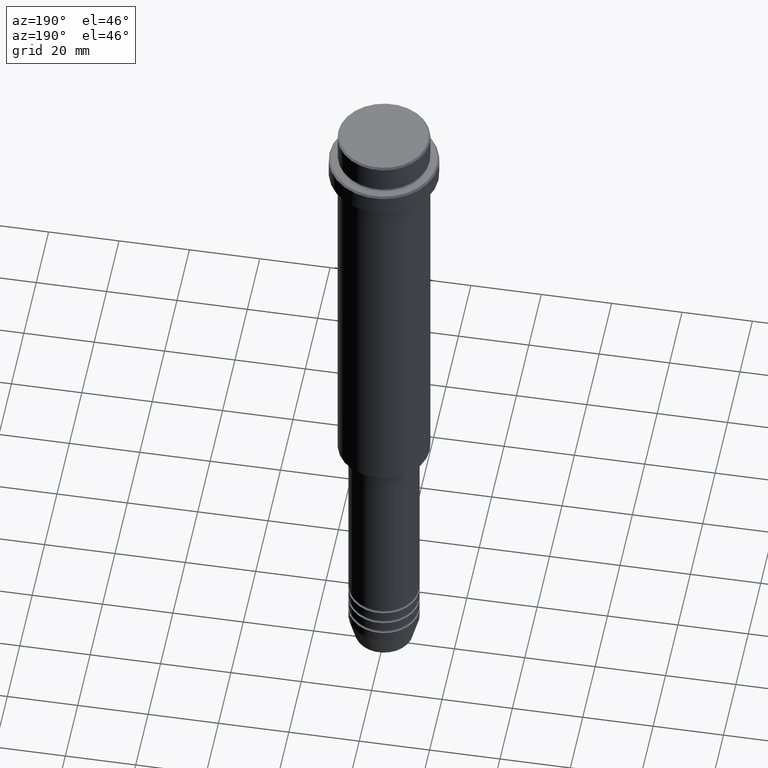
[diagram: clean part render]
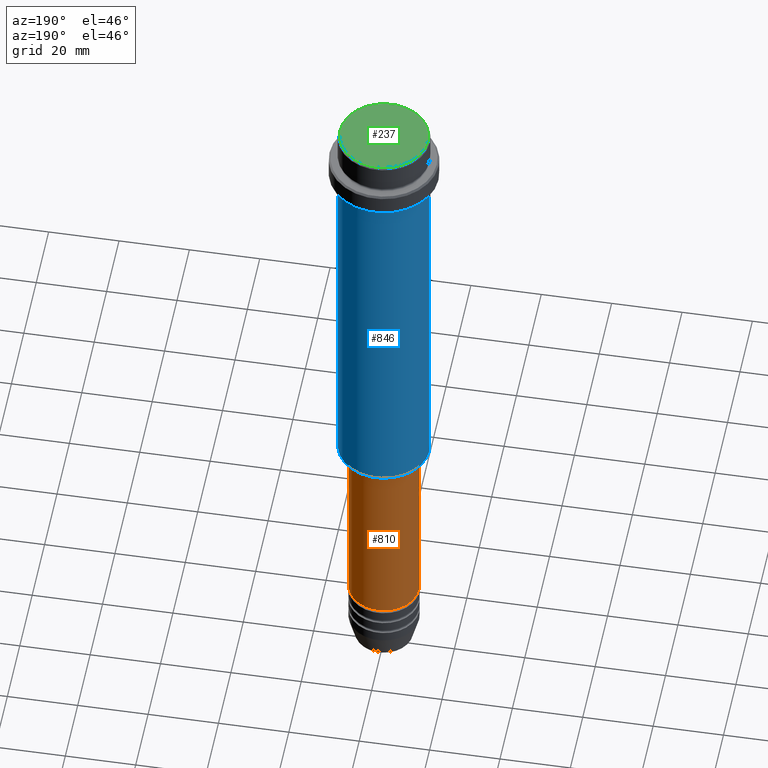
[diagram: same view with three faces highlighted in distinct colors, each labeled with its STEP entity id]
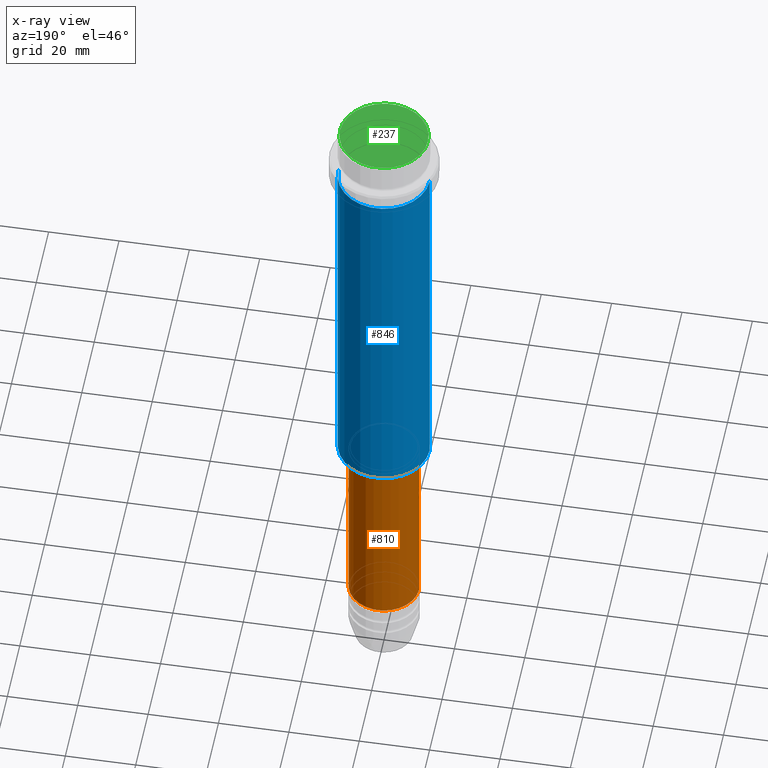
[diagram: x-ray of the same camera — body ghosted, the three highlighted faces saturated]
A machine part, auxiliary view with three faces highlighted in distinct colors.
The next image is the same camera in x-ray (body ghosted, the three faces saturated) — at least one of them is partly hidden behind the body in this view.
Their STEP definitions:

[orange] entity #810 — the highlighted cylindrical surface (edge-blend (fillet) strip) has radius 10 mm, axis along (-0, -0, 1).
#93 = DIRECTION ( 'NONE',  ( 1.000000000000000000, 0.000000000000000000, 0.000000000000000000 ) ) ;
#106 = VECTOR ( 'NONE', #851, 1000.000000000000000 ) ;
#221 = AXIS2_PLACEMENT_3D ( 'NONE', #1334, #486, #917 ) ;
#226 = CARTESIAN_POINT ( 'NONE',  ( -10.00000000000000000, 1.224646799147353256E-15, -180.9999999999999147 ) ) ;
#230 = LINE ( 'NONE', #670, #909 ) ;
#232 = CARTESIAN_POINT ( 'NONE',  ( 10.00000000000000178, 0.000000000000000000, -126.0000000000000284 ) ) ;
#392 = CARTESIAN_POINT ( 'NONE',  ( -10.00000000000000178, 1.224646799147353454E-15, 0.000000000000000000 ) ) ;
#486 = DIRECTION ( 'NONE',  ( -0.000000000000000000, -0.000000000000000000, 1.000000000000000000 ) ) ;
#539 = CARTESIAN_POINT ( 'NONE',  ( 0.000000000000000000, 0.000000000000000000, -180.9999999999999147 ) ) ;
#628 = VERTEX_POINT ( 'NONE', #232 ) ;
#640 = DIRECTION ( 'NONE',  ( -0.000000000000000000, -0.000000000000000000, 1.000000000000000000 ) ) ;
#646 = VERTEX_POINT ( 'NONE', #1000 ) ;
#660 = CIRCLE ( 'NONE', #683, 10.00000000000000000 ) ;
#670 = CARTESIAN_POINT ( 'NONE',  ( 10.00000000000000178, 0.000000000000000000, 0.000000000000000000 ) ) ;
#683 = AXIS2_PLACEMENT_3D ( 'NONE', #539, #640, #93 ) ;
#696 = VERTEX_POINT ( 'NONE', #226 ) ;
#701 = AXIS2_PLACEMENT_3D ( 'NONE', #775, #1219, #1257 ) ;
#720 = EDGE_CURVE ( 'NONE', #628, #646, #1318, .T. ) ;
#735 = LINE ( 'NONE', #392, #106 ) ;
#774 = ORIENTED_EDGE ( 'NONE', *, *, #870, .T. ) ;
#775 = CARTESIAN_POINT ( 'NONE',  ( 0.000000000000000000, 0.000000000000000000, -126.0000000000000284 ) ) ;
#810 = ADVANCED_FACE ( 'NONE', ( #912 ), #1014, .T. ) ;
#851 = DIRECTION ( 'NONE',  ( -0.000000000000000000, -0.000000000000000000, 1.000000000000000000 ) ) ;
#856 = ORIENTED_EDGE ( 'NONE', *, *, #997, .T. ) ;
#870 = EDGE_CURVE ( 'NONE', #696, #646, #735, .T. ) ;
#909 = VECTOR ( 'NONE', #1326, 1000.000000000000000 ) ;
#912 = FACE_OUTER_BOUND ( 'NONE', #943, .T. ) ;
#917 = DIRECTION ( 'NONE',  ( 1.000000000000000000, 0.000000000000000000, 0.000000000000000000 ) ) ;
#943 = EDGE_LOOP ( 'NONE', ( #856, #774, #1342, #1017 ) ) ;
#997 = EDGE_CURVE ( 'NONE', #1296, #696, #660, .T. ) ;
#1000 = CARTESIAN_POINT ( 'NONE',  ( -10.00000000000000178, 1.224646799147353454E-15, -126.0000000000000284 ) ) ;
#1014 = CYLINDRICAL_SURFACE ( 'NONE', #221, 10.00000000000000178 ) ;
#1017 = ORIENTED_EDGE ( 'NONE', *, *, #1148, .F. ) ;
#1114 = CARTESIAN_POINT ( 'NONE',  ( 10.00000000000000000, 0.000000000000000000, -180.9999999999999147 ) ) ;
#1148 = EDGE_CURVE ( 'NONE', #1296, #628, #230, .T. ) ;
#1219 = DIRECTION ( 'NONE',  ( -0.000000000000000000, -0.000000000000000000, 1.000000000000000000 ) ) ;
#1257 = DIRECTION ( 'NONE',  ( 1.000000000000000000, 0.000000000000000000, 0.000000000000000000 ) ) ;
#1296 = VERTEX_POINT ( 'NONE', #1114 ) ;
#1318 = CIRCLE ( 'NONE', #701, 10.00000000000000178 ) ;
#1326 = DIRECTION ( 'NONE',  ( -0.000000000000000000, -0.000000000000000000, 1.000000000000000000 ) ) ;
#1334 = CARTESIAN_POINT ( 'NONE',  ( 0.000000000000000000, 0.000000000000000000, 0.000000000000000000 ) ) ;
#1342 = ORIENTED_EDGE ( 'NONE', *, *, #720, .F. ) ;

[blue] entity #846 — the highlighted cylindrical surface (partial cylindrical patch) has radius 13 mm, axis along (-0, -0, 1).
#67 = DIRECTION ( 'NONE',  ( 1.000000000000000000, 0.000000000000000000, 0.000000000000000000 ) ) ;
#79 = CYLINDRICAL_SURFACE ( 'NONE', #336, 13.00000000000000000 ) ;
#121 = ORIENTED_EDGE ( 'NONE', *, *, #489, .F. ) ;
#131 = AXIS2_PLACEMENT_3D ( 'NONE', #847, #875, #348 ) ;
#179 = LINE ( 'NONE', #968, #926 ) ;
#200 = DIRECTION ( 'NONE',  ( 1.000000000000000000, 0.000000000000000000, 0.000000000000000000 ) ) ;
#280 = FACE_OUTER_BOUND ( 'NONE', #397, .T. ) ;
#307 = DIRECTION ( 'NONE',  ( -0.000000000000000000, -0.000000000000000000, 1.000000000000000000 ) ) ;
#336 = AXIS2_PLACEMENT_3D ( 'NONE', #730, #629, #67 ) ;
#348 = DIRECTION ( 'NONE',  ( -1.000000000000000000, 0.000000000000000000, 0.000000000000000000 ) ) ;
#374 = CARTESIAN_POINT ( 'NONE',  ( 13.00000000000000000, 0.000000000000000000, -124.5000000000000284 ) ) ;
#397 = EDGE_LOOP ( 'NONE', ( #1275, #433, #1143, #121 ) ) ;
#398 = DIRECTION ( 'NONE',  ( -0.000000000000000000, -0.000000000000000000, 1.000000000000000000 ) ) ;
#433 = ORIENTED_EDGE ( 'NONE', *, *, #932, .T. ) ;
#489 = EDGE_CURVE ( 'NONE', #1200, #988, #179, .T. ) ;
#522 = CARTESIAN_POINT ( 'NONE',  ( -13.00000000000000000, 1.592040838891559095E-15, 0.000000000000000000 ) ) ;
#577 = EDGE_CURVE ( 'NONE', #1200, #1156, #1047, .T. ) ;
#622 = CARTESIAN_POINT ( 'NONE',  ( -13.00000000000000000, 1.592040838891559095E-15, -16.00000000000000000 ) ) ;
#629 = DIRECTION ( 'NONE',  ( -0.000000000000000000, -0.000000000000000000, 1.000000000000000000 ) ) ;
#730 = CARTESIAN_POINT ( 'NONE',  ( 0.000000000000000000, 0.000000000000000000, 0.000000000000000000 ) ) ;
#771 = VECTOR ( 'NONE', #831, 1000.000000000000000 ) ;
#831 = DIRECTION ( 'NONE',  ( -0.000000000000000000, -0.000000000000000000, 1.000000000000000000 ) ) ;
#846 = ADVANCED_FACE ( 'NONE', ( #280 ), #79, .T. ) ;
#847 = CARTESIAN_POINT ( 'NONE',  ( 0.000000000000000000, 0.000000000000000000, -124.5000000000000284 ) ) ;
#875 = DIRECTION ( 'NONE',  ( -0.000000000000000000, -0.000000000000000000, 1.000000000000000000 ) ) ;
#894 = EDGE_CURVE ( 'NONE', #988, #901, #978, .T. ) ;
#901 = VERTEX_POINT ( 'NONE', #622 ) ;
#919 = CARTESIAN_POINT ( 'NONE',  ( -13.00000000000000000, 1.592040838891559095E-15, -124.5000000000000284 ) ) ;
#926 = VECTOR ( 'NONE', #307, 1000.000000000000000 ) ;
#931 = CARTESIAN_POINT ( 'NONE',  ( 13.00000000000000000, 0.000000000000000000, -16.00000000000000000 ) ) ;
#932 = EDGE_CURVE ( 'NONE', #1156, #901, #1376, .T. ) ;
#968 = CARTESIAN_POINT ( 'NONE',  ( 13.00000000000000000, 0.000000000000000000, 0.000000000000000000 ) ) ;
#978 = CIRCLE ( 'NONE', #1140, 13.00000000000000000 ) ;
#988 = VERTEX_POINT ( 'NONE', #931 ) ;
#1047 = CIRCLE ( 'NONE', #131, 13.00000000000000000 ) ;
#1140 = AXIS2_PLACEMENT_3D ( 'NONE', #1381, #398, #200 ) ;
#1143 = ORIENTED_EDGE ( 'NONE', *, *, #894, .F. ) ;
#1156 = VERTEX_POINT ( 'NONE', #919 ) ;
#1200 = VERTEX_POINT ( 'NONE', #374 ) ;
#1275 = ORIENTED_EDGE ( 'NONE', *, *, #577, .T. ) ;
#1376 = LINE ( 'NONE', #522, #771 ) ;
#1381 = CARTESIAN_POINT ( 'NONE',  ( 0.000000000000000000, 0.000000000000000000, -16.00000000000000000 ) ) ;

[green] entity #237 — the highlighted planar face has unit normal (0, -0, 1).
#61 = CIRCLE ( 'NONE', #859, 12.49999999999998579 ) ;
#118 = DIRECTION ( 'NONE',  ( -0.000000000000000000, -0.000000000000000000, 1.000000000000000000 ) ) ;
#237 = ADVANCED_FACE ( 'NONE', ( #770 ), #437, .T. ) ;
#324 = DIRECTION ( 'NONE',  ( 0.000000000000000000, -0.000000000000000000, 1.000000000000000000 ) ) ;
#399 = CARTESIAN_POINT ( 'NONE',  ( 0.000000000000000000, 0.000000000000000000, 0.000000000000000000 ) ) ;
#430 = CIRCLE ( 'NONE', #1385, 12.49999999999998579 ) ;
#437 = PLANE ( 'NONE',  #949 ) ;
#543 = CARTESIAN_POINT ( 'NONE',  ( 0.000000000000000000, 0.000000000000000000, 0.000000000000000000 ) ) ;
#545 = EDGE_CURVE ( 'NONE', #916, #764, #61, .T. ) ;
#592 = ORIENTED_EDGE ( 'NONE', *, *, #545, .T. ) ;
#601 = EDGE_CURVE ( 'NONE', #764, #916, #430, .T. ) ;
#697 = CARTESIAN_POINT ( 'NONE',  ( 12.49999999999998579, 1.561424668912874125E-15, 0.000000000000000000 ) ) ;
#764 = VERTEX_POINT ( 'NONE', #697 ) ;
#770 = FACE_OUTER_BOUND ( 'NONE', #772, .T. ) ;
#772 = EDGE_LOOP ( 'NONE', ( #592, #878 ) ) ;
#852 = DIRECTION ( 'NONE',  ( 1.000000000000000000, 0.000000000000000000, 0.000000000000000000 ) ) ;
#859 = AXIS2_PLACEMENT_3D ( 'NONE', #399, #1283, #852 ) ;
#868 = DIRECTION ( 'NONE',  ( 1.000000000000000000, 0.000000000000000000, 0.000000000000000000 ) ) ;
#878 = ORIENTED_EDGE ( 'NONE', *, *, #601, .T. ) ;
#916 = VERTEX_POINT ( 'NONE', #1265 ) ;
#949 = AXIS2_PLACEMENT_3D ( 'NONE', #1111, #324, #1215 ) ;
#1111 = CARTESIAN_POINT ( 'NONE',  ( 0.000000000000000000, 0.000000000000000000, 0.000000000000000000 ) ) ;
#1215 = DIRECTION ( 'NONE',  ( 1.000000000000000000, 0.000000000000000000, 0.000000000000000000 ) ) ;
#1265 = CARTESIAN_POINT ( 'NONE',  ( -12.49999999999998579, 0.000000000000000000, 0.000000000000000000 ) ) ;
#1283 = DIRECTION ( 'NONE',  ( -0.000000000000000000, -0.000000000000000000, 1.000000000000000000 ) ) ;
#1385 = AXIS2_PLACEMENT_3D ( 'NONE', #543, #118, #868 ) ;